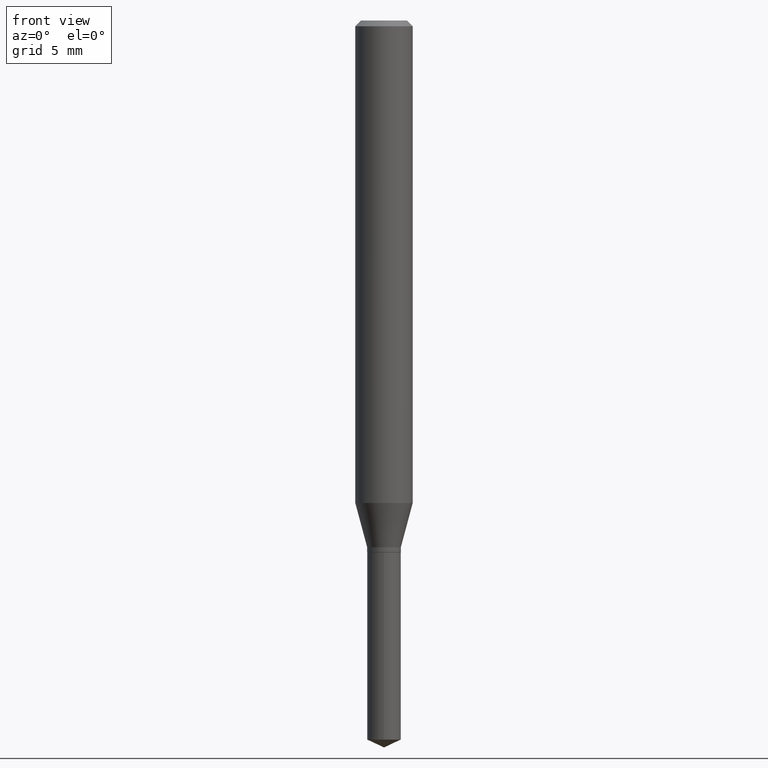
[diagram: clean part render]
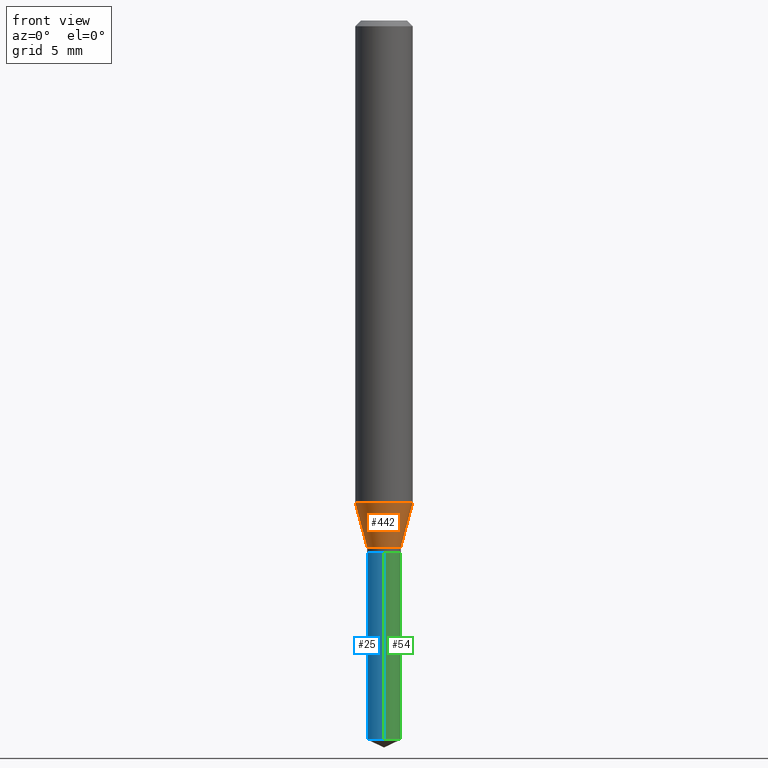
[diagram: same view with three faces highlighted in distinct colors, each labeled with its STEP entity id]
A machine part, front view with three faces highlighted in distinct colors.
Their STEP definitions:

[orange] entity #442 — the highlighted conical surface has half-angle 15 deg.
#13 = VERTEX_POINT ( 'NONE', #457 ) ;
#17 = EDGE_CURVE ( 'NONE', #156, #222, #51, .T. ) ;
#31 = DIRECTION ( 'NONE',  ( 1.000000000000000000, -6.982962677686266711E-15, 0.000000000000000000 ) ) ;
#51 = CIRCLE ( 'NONE', #393, 0.03464999999999998637 ) ;
#61 = EDGE_CURVE ( 'NONE', #156, #251, #453, .T. ) ;
#63 = AXIS2_PLACEMENT_3D ( 'NONE', #366, #296, #31 ) ;
#64 = ORIENTED_EDGE ( 'NONE', *, *, #365, .F. ) ;
#73 = ORIENTED_EDGE ( 'NONE', *, *, #17, .T. ) ;
#74 = DIRECTION ( 'NONE',  ( -0.2588190451025212391, 5.211531920934549464E-15, 0.9659258262890679791 ) ) ;
#105 = DIRECTION ( 'NONE',  ( -2.445468806185136597E-29, 3.491481338843145583E-15, 1.000000000000000000 ) ) ;
#118 = CARTESIAN_POINT ( 'NONE',  ( 2.651132732785306232E-29, -3.785114919439853921E-15, -1.084099999999999842 ) ) ;
#125 = LINE ( 'NONE', #243, #177 ) ;
#131 = CARTESIAN_POINT ( 'NONE',  ( 0.03464999999999998637, -4.027074576221682993E-15, -1.084099999999999842 ) ) ;
#147 = ORIENTED_EDGE ( 'NONE', *, *, #182, .T. ) ;
#154 = EDGE_LOOP ( 'NONE', ( #441, #73, #147, #64 ) ) ;
#156 = VERTEX_POINT ( 'NONE', #278 ) ;
#159 = DIRECTION ( 'NONE',  ( -2.445468806185136597E-29, 3.491481338843145583E-15, 1.000000000000000000 ) ) ;
#177 = VECTOR ( 'NONE', #326, 39.37007874015748854 ) ;
#182 = EDGE_CURVE ( 'NONE', #222, #13, #125, .T. ) ;
#187 = CARTESIAN_POINT ( 'NONE',  ( 2.651132732785306232E-29, -3.785114919439853921E-15, -1.084099999999999842 ) ) ;
#207 = CARTESIAN_POINT ( 'NONE',  ( -0.05905000000000011628, -3.047598021667626732E-15, -0.9930379602953189888 ) ) ;
#222 = VERTEX_POINT ( 'NONE', #131 ) ;
#243 = CARTESIAN_POINT ( 'NONE',  ( 0.03464999999999998637, -4.027074576221682993E-15, -1.084099999999999842 ) ) ;
#247 = CONICAL_SURFACE ( 'NONE', #395, 0.03464999999999998637, 0.2617993877991499629 ) ;
#250 = DIRECTION ( 'NONE',  ( 1.000000000000000000, -6.982962677686267499E-15, 0.000000000000000000 ) ) ;
#251 = VERTEX_POINT ( 'NONE', #207 ) ;
#267 = DIRECTION ( 'NONE',  ( 1.000000000000000000, -6.982962677686267499E-15, 0.000000000000000000 ) ) ;
#276 = CIRCLE ( 'NONE', #63, 0.05905000000000011628 ) ;
#278 = CARTESIAN_POINT ( 'NONE',  ( -0.03464999999999998637, -3.556194694126252781E-15, -1.084099999999999842 ) ) ;
#296 = DIRECTION ( 'NONE',  ( -2.445468806185136597E-29, 3.491481338843145583E-15, 1.000000000000000000 ) ) ;
#318 = VECTOR ( 'NONE', #74, 39.37007874015748854 ) ;
#326 = DIRECTION ( 'NONE',  ( 0.2588190451025212391, 1.565188264969622362E-15, 0.9659258262890679791 ) ) ;
#365 = EDGE_CURVE ( 'NONE', #251, #13, #276, .T. ) ;
#366 = CARTESIAN_POINT ( 'NONE',  ( 2.428443355259917154E-29, -3.467173507133967014E-15, -0.9930379602953189888 ) ) ;
#393 = AXIS2_PLACEMENT_3D ( 'NONE', #118, #159, #267 ) ;
#395 = AXIS2_PLACEMENT_3D ( 'NONE', #187, #105, #250 ) ;
#411 = FACE_OUTER_BOUND ( 'NONE', #154, .T. ) ;
#441 = ORIENTED_EDGE ( 'NONE', *, *, #61, .F. ) ;
#442 = ADVANCED_FACE ( 'NONE', ( #411 ), #247, .T. ) ;
#453 = LINE ( 'NONE', #461, #318 ) ;
#457 = CARTESIAN_POINT ( 'NONE',  ( 0.05905000000000011628, -3.879517453251341540E-15, -0.9930379602953189888 ) ) ;
#461 = CARTESIAN_POINT ( 'NONE',  ( -0.03464999999999998637, -3.538911861498979107E-15, -1.084099999999999842 ) ) ;

[blue] entity #25 — the highlighted cylindrical surface (edge-blend (fillet) strip) has radius 0.8801 mm, axis along (-0, 0, 1).
#25 = ADVANCED_FACE ( 'NONE', ( #228 ), #199, .T. ) ;
#33 = AXIS2_PLACEMENT_3D ( 'NONE', #475, #373, #146 ) ;
#35 = LINE ( 'NONE', #138, #126 ) ;
#38 = ORIENTED_EDGE ( 'NONE', *, *, #346, .F. ) ;
#94 = EDGE_CURVE ( 'NONE', #249, #385, #478, .T. ) ;
#111 = ORIENTED_EDGE ( 'NONE', *, *, #263, .T. ) ;
#124 = DIRECTION ( 'NONE',  ( -6.982962677686265922E-15, -1.000000000000000000, 0.000000000000000000 ) ) ;
#126 = VECTOR ( 'NONE', #288, 39.37007874015748143 ) ;
#138 = CARTESIAN_POINT ( 'NONE',  ( 2.462030579409014388E-16, 0.03464999999999618385, -1.094500000000000028 ) ) ;
#140 = AXIS2_PLACEMENT_3D ( 'NONE', #163, #313, #124 ) ;
#146 = DIRECTION ( 'NONE',  ( -6.982962677686265922E-15, -1.000000000000000000, 3.942060596918128599E-15 ) ) ;
#151 = AXIS2_PLACEMENT_3D ( 'NONE', #388, #413, #195 ) ;
#163 = CARTESIAN_POINT ( 'NONE',  ( 3.619153613953196531E-29, -5.167190633187319262E-15, -1.479942439644929220 ) ) ;
#181 = VERTEX_POINT ( 'NONE', #426 ) ;
#195 = DIRECTION ( 'NONE',  ( -6.982962677686265922E-15, -1.000000000000000000, 3.942060596918128599E-15 ) ) ;
#199 = CYLINDRICAL_SURFACE ( 'NONE', #151, 0.03465000000000000024 ) ;
#228 = FACE_OUTER_BOUND ( 'NONE', #399, .T. ) ;
#236 = CARTESIAN_POINT ( 'NONE',  ( -2.419596567818023494E-16, -0.03465000000000382357, -1.094499999999999806 ) ) ;
#248 = CARTESIAN_POINT ( 'NONE',  ( -2.419596567817929817E-16, -0.03465000000000517666, -1.479942439644929220 ) ) ;
#249 = VERTEX_POINT ( 'NONE', #321 ) ;
#263 = EDGE_CURVE ( 'NONE', #385, #181, #358, .T. ) ;
#274 = DIRECTION ( 'NONE',  ( -2.445470214571802396E-29, 3.491479321953280158E-15, 1.000000000000000000 ) ) ;
#288 = DIRECTION ( 'NONE',  ( -2.445470214571802396E-29, 3.491479321953280158E-15, 1.000000000000000000 ) ) ;
#313 = DIRECTION ( 'NONE',  ( -2.445470214571802116E-29, 3.491479321953280158E-15, 1.000000000000000000 ) ) ;
#316 = EDGE_CURVE ( 'NONE', #447, #181, #334, .T. ) ;
#321 = CARTESIAN_POINT ( 'NONE',  ( 2.462030579409109051E-16, 0.03464999999999483771, -1.479942439644929220 ) ) ;
#334 = CIRCLE ( 'NONE', #33, 0.03465000000000000024 ) ;
#342 = VECTOR ( 'NONE', #274, 39.37007874015748143 ) ;
#346 = EDGE_CURVE ( 'NONE', #249, #447, #35, .T. ) ;
#358 = LINE ( 'NONE', #236, #342 ) ;
#373 = DIRECTION ( 'NONE',  ( -2.445470214571802116E-29, 3.491479321953280158E-15, 1.000000000000000000 ) ) ;
#385 = VERTEX_POINT ( 'NONE', #248 ) ;
#388 = CARTESIAN_POINT ( 'NONE',  ( 2.676565608369631794E-29, -3.821426325363822773E-15, -1.094499999999999806 ) ) ;
#399 = EDGE_LOOP ( 'NONE', ( #38, #487, #111, #401 ) ) ;
#401 = ORIENTED_EDGE ( 'NONE', *, *, #316, .F. ) ;
#406 = CARTESIAN_POINT ( 'NONE',  ( 2.462030579409110037E-16, 0.03464999999999618385, -1.094500000000000028 ) ) ;
#413 = DIRECTION ( 'NONE',  ( -2.445470214571802116E-29, 3.491479321953280158E-15, 1.000000000000000000 ) ) ;
#426 = CARTESIAN_POINT ( 'NONE',  ( -2.419596567818023494E-16, -0.03465000000000382357, -1.094499999999999806 ) ) ;
#447 = VERTEX_POINT ( 'NONE', #406 ) ;
#475 = CARTESIAN_POINT ( 'NONE',  ( 2.676565608369631794E-29, -3.821426325363822773E-15, -1.094499999999999806 ) ) ;
#478 = CIRCLE ( 'NONE', #140, 0.03465000000000000024 ) ;
#487 = ORIENTED_EDGE ( 'NONE', *, *, #94, .T. ) ;

[green] entity #54 — the highlighted cylindrical surface (edge-blend (fillet) strip) has radius 0.8801 mm, axis along (-0, 0, 1).
#35 = LINE ( 'NONE', #138, #126 ) ;
#39 = CYLINDRICAL_SURFACE ( 'NONE', #379, 0.03465000000000000024 ) ;
#42 = DIRECTION ( 'NONE',  ( -6.982962677686265922E-15, -1.000000000000000000, 3.942060596918128599E-15 ) ) ;
#54 = ADVANCED_FACE ( 'NONE', ( #310 ), #39, .T. ) ;
#78 = CIRCLE ( 'NONE', #152, 0.03465000000000000024 ) ;
#81 = ORIENTED_EDGE ( 'NONE', *, *, #263, .F. ) ;
#88 = CIRCLE ( 'NONE', #120, 0.03465000000000000024 ) ;
#120 = AXIS2_PLACEMENT_3D ( 'NONE', #180, #331, #293 ) ;
#126 = VECTOR ( 'NONE', #288, 39.37007874015748143 ) ;
#128 = DIRECTION ( 'NONE',  ( -2.445470214571802116E-29, 3.491479321953280158E-15, 1.000000000000000000 ) ) ;
#138 = CARTESIAN_POINT ( 'NONE',  ( 2.462030579409014388E-16, 0.03464999999999618385, -1.094500000000000028 ) ) ;
#145 = EDGE_CURVE ( 'NONE', #385, #249, #78, .T. ) ;
#152 = AXIS2_PLACEMENT_3D ( 'NONE', #201, #128, #234 ) ;
#180 = CARTESIAN_POINT ( 'NONE',  ( 2.676565608369631794E-29, -3.821426325363822773E-15, -1.094499999999999806 ) ) ;
#181 = VERTEX_POINT ( 'NONE', #426 ) ;
#201 = CARTESIAN_POINT ( 'NONE',  ( 3.619153613953196531E-29, -5.167190633187319262E-15, -1.479942439644929220 ) ) ;
#234 = DIRECTION ( 'NONE',  ( -6.982962677686265922E-15, -1.000000000000000000, 0.000000000000000000 ) ) ;
#236 = CARTESIAN_POINT ( 'NONE',  ( -2.419596567818023494E-16, -0.03465000000000382357, -1.094499999999999806 ) ) ;
#248 = CARTESIAN_POINT ( 'NONE',  ( -2.419596567817929817E-16, -0.03465000000000517666, -1.479942439644929220 ) ) ;
#249 = VERTEX_POINT ( 'NONE', #321 ) ;
#263 = EDGE_CURVE ( 'NONE', #385, #181, #358, .T. ) ;
#274 = DIRECTION ( 'NONE',  ( -2.445470214571802396E-29, 3.491479321953280158E-15, 1.000000000000000000 ) ) ;
#288 = DIRECTION ( 'NONE',  ( -2.445470214571802396E-29, 3.491479321953280158E-15, 1.000000000000000000 ) ) ;
#293 = DIRECTION ( 'NONE',  ( -6.982962677686265922E-15, -1.000000000000000000, 3.942060596918128599E-15 ) ) ;
#310 = FACE_OUTER_BOUND ( 'NONE', #450, .T. ) ;
#321 = CARTESIAN_POINT ( 'NONE',  ( 2.462030579409109051E-16, 0.03464999999999483771, -1.479942439644929220 ) ) ;
#331 = DIRECTION ( 'NONE',  ( -2.445470214571802116E-29, 3.491479321953280158E-15, 1.000000000000000000 ) ) ;
#342 = VECTOR ( 'NONE', #274, 39.37007874015748143 ) ;
#346 = EDGE_CURVE ( 'NONE', #249, #447, #35, .T. ) ;
#349 = ORIENTED_EDGE ( 'NONE', *, *, #145, .T. ) ;
#353 = DIRECTION ( 'NONE',  ( -2.445470214571802116E-29, 3.491479321953280158E-15, 1.000000000000000000 ) ) ;
#358 = LINE ( 'NONE', #236, #342 ) ;
#369 = ORIENTED_EDGE ( 'NONE', *, *, #346, .T. ) ;
#379 = AXIS2_PLACEMENT_3D ( 'NONE', #421, #353, #42 ) ;
#385 = VERTEX_POINT ( 'NONE', #248 ) ;
#405 = EDGE_CURVE ( 'NONE', #181, #447, #88, .T. ) ;
#406 = CARTESIAN_POINT ( 'NONE',  ( 2.462030579409110037E-16, 0.03464999999999618385, -1.094500000000000028 ) ) ;
#421 = CARTESIAN_POINT ( 'NONE',  ( 2.676565608369631794E-29, -3.821426325363822773E-15, -1.094499999999999806 ) ) ;
#426 = CARTESIAN_POINT ( 'NONE',  ( -2.419596567818023494E-16, -0.03465000000000382357, -1.094499999999999806 ) ) ;
#445 = ORIENTED_EDGE ( 'NONE', *, *, #405, .F. ) ;
#447 = VERTEX_POINT ( 'NONE', #406 ) ;
#450 = EDGE_LOOP ( 'NONE', ( #349, #369, #445, #81 ) ) ;